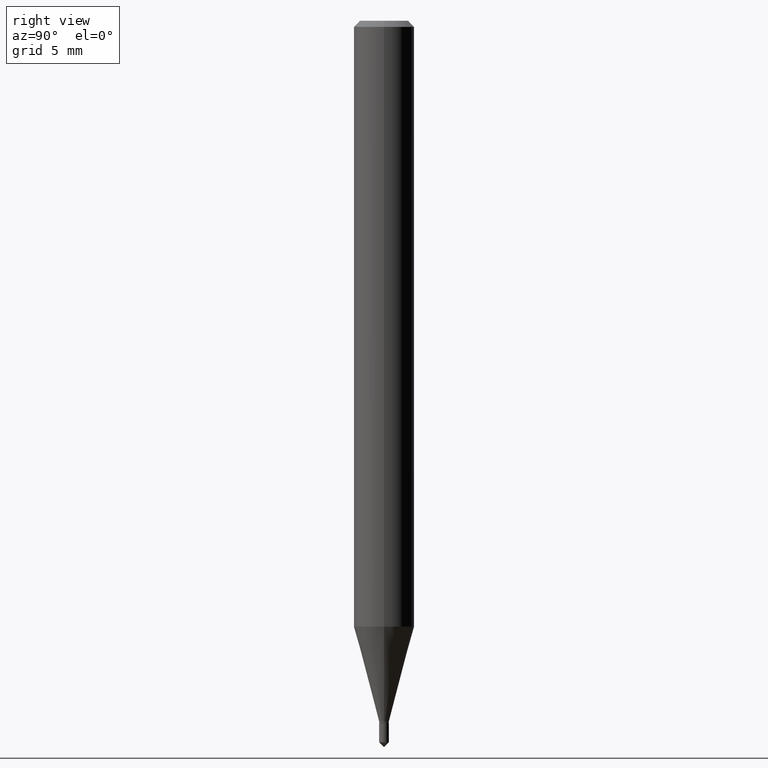
[diagram: clean part render]
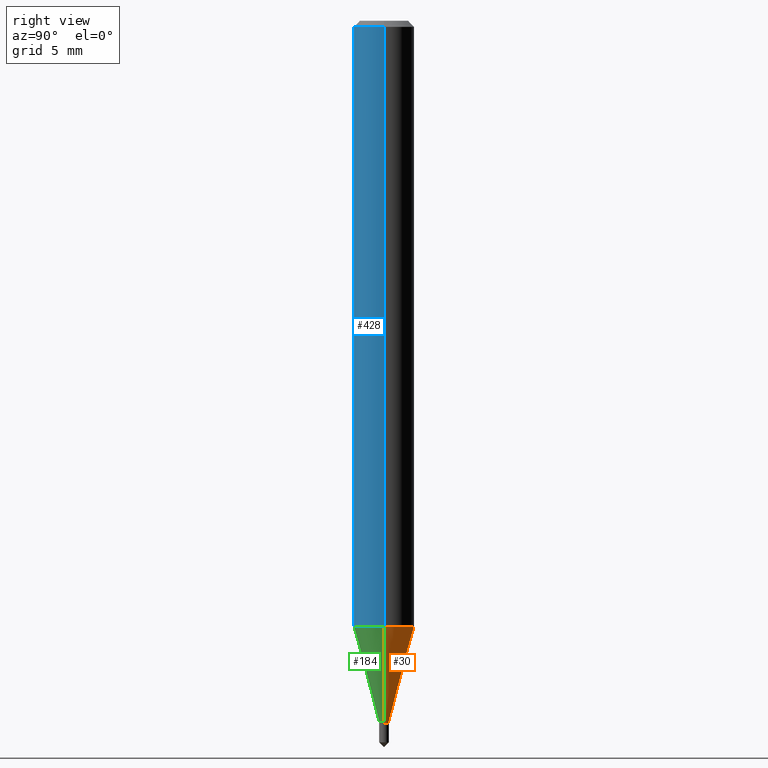
[diagram: same view with three faces highlighted in distinct colors, each labeled with its STEP entity id]
A machine part, right view with three faces highlighted in distinct colors.
Their STEP definitions:

[orange] entity #30 — the highlighted conical surface has half-angle 15 deg.
#4 = AXIS2_PLACEMENT_3D ( 'NONE', #236, #418, #45 ) ;
#26 = CARTESIAN_POINT ( 'NONE',  ( 3.538593362549893723E-29, -5.052173497306033276E-15, -1.447000000000000508 ) ) ;
#29 = DIRECTION ( 'NONE',  ( -2.445468806185136597E-29, 3.491481338843145583E-15, 1.000000000000000000 ) ) ;
#30 = ADVANCED_FACE ( 'NONE', ( #299 ), #131, .T. ) ;
#45 = DIRECTION ( 'NONE',  ( 1.000000000000000000, -6.982962677686235945E-15, 0.000000000000000000 ) ) ;
#50 = CARTESIAN_POINT ( 'NONE',  ( 0.01000000000000000021, -5.122003124082895786E-15, -1.447000000000000508 ) ) ;
#70 = CARTESIAN_POINT ( 'NONE',  ( 3.059446136316986925E-29, -4.368078245418367740E-15, -1.251067332602634252 ) ) ;
#83 = LINE ( 'NONE', #230, #281 ) ;
#93 = CIRCLE ( 'NONE', #425, 0.01000000000000000021 ) ;
#104 = EDGE_LOOP ( 'NONE', ( #201, #403, #405, #222 ) ) ;
#112 = VERTEX_POINT ( 'NONE', #345 ) ;
#131 = CONICAL_SURFACE ( 'NONE', #4, 0.01000000000000000021, 0.2617993877991499074 ) ;
#141 = VERTEX_POINT ( 'NONE', #420 ) ;
#143 = EDGE_CURVE ( 'NONE', #240, #141, #83, .T. ) ;
#182 = VERTEX_POINT ( 'NONE', #396 ) ;
#201 = ORIENTED_EDGE ( 'NONE', *, *, #395, .T. ) ;
#222 = ORIENTED_EDGE ( 'NONE', *, *, #284, .F. ) ;
#230 = CARTESIAN_POINT ( 'NONE',  ( -0.01000000000000000021, -4.981119223730023195E-15, -1.447000000000000508 ) ) ;
#236 = CARTESIAN_POINT ( 'NONE',  ( 3.538593362549893723E-29, -5.052173497306033276E-15, -1.447000000000000508 ) ) ;
#240 = VERTEX_POINT ( 'NONE', #323 ) ;
#281 = VECTOR ( 'NONE', #469, 39.37007874015748854 ) ;
#284 = EDGE_CURVE ( 'NONE', #112, #182, #387, .T. ) ;
#292 = DIRECTION ( 'NONE',  ( 1.000000000000000000, -6.982962677686235945E-15, 0.000000000000000000 ) ) ;
#299 = FACE_OUTER_BOUND ( 'NONE', #104, .T. ) ;
#323 = CARTESIAN_POINT ( 'NONE',  ( -0.01000000000000000021, -4.985483575403576559E-15, -1.447000000000000508 ) ) ;
#337 = AXIS2_PLACEMENT_3D ( 'NONE', #70, #29, #404 ) ;
#345 = CARTESIAN_POINT ( 'NONE',  ( 0.01000000000000000021, -5.122003124082895786E-15, -1.447000000000000508 ) ) ;
#353 = DIRECTION ( 'NONE',  ( 0.2588190451025211836, 1.565188264969622559E-15, 0.9659258262890679791 ) ) ;
#357 = EDGE_CURVE ( 'NONE', #182, #141, #377, .T. ) ;
#362 = VECTOR ( 'NONE', #353, 39.37007874015748854 ) ;
#377 = CIRCLE ( 'NONE', #337, 0.06250000000000015266 ) ;
#387 = LINE ( 'NONE', #50, #362 ) ;
#395 = EDGE_CURVE ( 'NONE', #112, #240, #93, .T. ) ;
#396 = CARTESIAN_POINT ( 'NONE',  ( 0.06250000000000015266, -4.804513412773760987E-15, -1.251067332602634252 ) ) ;
#403 = ORIENTED_EDGE ( 'NONE', *, *, #143, .T. ) ;
#404 = DIRECTION ( 'NONE',  ( 1.000000000000000000, -6.982962677686269077E-15, 0.000000000000000000 ) ) ;
#405 = ORIENTED_EDGE ( 'NONE', *, *, #357, .F. ) ;
#418 = DIRECTION ( 'NONE',  ( -2.445468806185136597E-29, 3.491481338843145583E-15, 1.000000000000000000 ) ) ;
#420 = CARTESIAN_POINT ( 'NONE',  ( -0.06250000000000015266, -3.923989035568304335E-15, -1.251067332602634252 ) ) ;
#425 = AXIS2_PLACEMENT_3D ( 'NONE', #26, #484, #292 ) ;
#469 = DIRECTION ( 'NONE',  ( -0.2588190451025211836, 5.211531920934547886E-15, 0.9659258262890679791 ) ) ;
#484 = DIRECTION ( 'NONE',  ( -2.445468806185136597E-29, 3.491481338843145583E-15, 1.000000000000000000 ) ) ;

[blue] entity #428 — the highlighted cylindrical surface (edge-blend (fillet) strip) has radius 1.5875 mm, axis along (-0, 0, 1).
#3 = CYLINDRICAL_SURFACE ( 'NONE', #13, 0.06250000000000006939 ) ;
#12 = CARTESIAN_POINT ( 'NONE',  ( 0.06250000000000000000, -4.800786840909313294E-16, -0.01250000000000008570 ) ) ;
#13 = AXIS2_PLACEMENT_3D ( 'NONE', #103, #137, #211 ) ;
#16 = EDGE_LOOP ( 'NONE', ( #256, #72, #76, #56 ) ) ;
#20 = EDGE_CURVE ( 'NONE', #182, #185, #81, .T. ) ;
#35 = CIRCLE ( 'NONE', #160, 0.06250000000000015266 ) ;
#56 = ORIENTED_EDGE ( 'NONE', *, *, #213, .F. ) ;
#63 = FACE_OUTER_BOUND ( 'NONE', #16, .T. ) ;
#65 = EDGE_CURVE ( 'NONE', #141, #289, #383, .T. ) ;
#72 = ORIENTED_EDGE ( 'NONE', *, *, #99, .T. ) ;
#76 = ORIENTED_EDGE ( 'NONE', *, *, #20, .T. ) ;
#81 = LINE ( 'NONE', #264, #406 ) ;
#99 = EDGE_CURVE ( 'NONE', #141, #182, #35, .T. ) ;
#103 = CARTESIAN_POINT ( 'NONE',  ( 0.000000000000000000, 0.000000000000000000, 0.000000000000000000 ) ) ;
#121 = DIRECTION ( 'NONE',  ( -2.445468806185136597E-29, 3.491481338843145583E-15, 1.000000000000000000 ) ) ;
#137 = DIRECTION ( 'NONE',  ( -2.445468806185136597E-29, 3.491481338843145583E-15, 1.000000000000000000 ) ) ;
#141 = VERTEX_POINT ( 'NONE', #420 ) ;
#148 = DIRECTION ( 'NONE',  ( -2.445468806185136877E-29, 3.491481338843145188E-15, 1.000000000000000000 ) ) ;
#153 = CARTESIAN_POINT ( 'NONE',  ( -0.06250000000000006939, 4.440892098500631092E-16, -3.074334431409319617E-30 ) ) ;
#160 = AXIS2_PLACEMENT_3D ( 'NONE', #385, #121, #309 ) ;
#182 = VERTEX_POINT ( 'NONE', #396 ) ;
#185 = VERTEX_POINT ( 'NONE', #12 ) ;
#194 = DIRECTION ( 'NONE',  ( -2.445468806185136877E-29, 3.491481338843145188E-15, 1.000000000000000000 ) ) ;
#205 = VECTOR ( 'NONE', #194, 39.37007874015748143 ) ;
#206 = CARTESIAN_POINT ( 'NONE',  ( 3.056836007731441853E-31, -4.364351673553962300E-17, -0.01250000000000008570 ) ) ;
#207 = CIRCLE ( 'NONE', #415, 0.06250000000000000000 ) ;
#211 = DIRECTION ( 'NONE',  ( 1.000000000000000000, -6.982962677686267499E-15, 4.876176775795936353E-29 ) ) ;
#213 = EDGE_CURVE ( 'NONE', #289, #185, #207, .T. ) ;
#242 = DIRECTION ( 'NONE',  ( 1.000000000000000000, -6.982962677686266711E-15, 0.000000000000000000 ) ) ;
#245 = DIRECTION ( 'NONE',  ( -2.445468806185136597E-29, 3.491481338843145583E-15, 1.000000000000000000 ) ) ;
#256 = ORIENTED_EDGE ( 'NONE', *, *, #65, .F. ) ;
#264 = CARTESIAN_POINT ( 'NONE',  ( 0.06250000000000006939, -4.364351673553922118E-16, 3.047610484872463724E-30 ) ) ;
#289 = VERTEX_POINT ( 'NONE', #471 ) ;
#309 = DIRECTION ( 'NONE',  ( 1.000000000000000000, -6.982962677686269077E-15, 0.000000000000000000 ) ) ;
#383 = LINE ( 'NONE', #153, #205 ) ;
#385 = CARTESIAN_POINT ( 'NONE',  ( 3.059446136316986925E-29, -4.368078245418367740E-15, -1.251067332602634252 ) ) ;
#396 = CARTESIAN_POINT ( 'NONE',  ( 0.06250000000000015266, -4.804513412773760987E-15, -1.251067332602634252 ) ) ;
#406 = VECTOR ( 'NONE', #148, 39.37007874015748143 ) ;
#415 = AXIS2_PLACEMENT_3D ( 'NONE', #206, #245, #242 ) ;
#420 = CARTESIAN_POINT ( 'NONE',  ( -0.06250000000000015266, -3.923989035568304335E-15, -1.251067332602634252 ) ) ;
#428 = ADVANCED_FACE ( 'NONE', ( #63 ), #3, .T. ) ;
#471 = CARTESIAN_POINT ( 'NONE',  ( -0.06250000000000000000, -1.761771671226889654E-15, -0.01250000000000008570 ) ) ;

[green] entity #184 — the highlighted conical surface has half-angle 15 deg.
#8 = DIRECTION ( 'NONE',  ( 1.000000000000000000, -6.982962677686235945E-15, 0.000000000000000000 ) ) ;
#15 = FACE_OUTER_BOUND ( 'NONE', #348, .T. ) ;
#22 = CIRCLE ( 'NONE', #49, 0.01000000000000000021 ) ;
#35 = CIRCLE ( 'NONE', #160, 0.06250000000000015266 ) ;
#39 = DIRECTION ( 'NONE',  ( -2.445468806185136597E-29, 3.491481338843145583E-15, 1.000000000000000000 ) ) ;
#49 = AXIS2_PLACEMENT_3D ( 'NONE', #191, #39, #8 ) ;
#50 = CARTESIAN_POINT ( 'NONE',  ( 0.01000000000000000021, -5.122003124082895786E-15, -1.447000000000000508 ) ) ;
#83 = LINE ( 'NONE', #230, #281 ) ;
#99 = EDGE_CURVE ( 'NONE', #141, #182, #35, .T. ) ;
#100 = EDGE_CURVE ( 'NONE', #240, #112, #22, .T. ) ;
#110 = CONICAL_SURFACE ( 'NONE', #233, 0.01000000000000000021, 0.2617993877991499074 ) ;
#112 = VERTEX_POINT ( 'NONE', #345 ) ;
#121 = DIRECTION ( 'NONE',  ( -2.445468806185136597E-29, 3.491481338843145583E-15, 1.000000000000000000 ) ) ;
#141 = VERTEX_POINT ( 'NONE', #420 ) ;
#143 = EDGE_CURVE ( 'NONE', #240, #141, #83, .T. ) ;
#160 = AXIS2_PLACEMENT_3D ( 'NONE', #385, #121, #309 ) ;
#165 = DIRECTION ( 'NONE',  ( -2.445468806185136597E-29, 3.491481338843145583E-15, 1.000000000000000000 ) ) ;
#182 = VERTEX_POINT ( 'NONE', #396 ) ;
#184 = ADVANCED_FACE ( 'NONE', ( #15 ), #110, .T. ) ;
#191 = CARTESIAN_POINT ( 'NONE',  ( 3.538593362549893723E-29, -5.052173497306033276E-15, -1.447000000000000508 ) ) ;
#225 = ORIENTED_EDGE ( 'NONE', *, *, #99, .F. ) ;
#230 = CARTESIAN_POINT ( 'NONE',  ( -0.01000000000000000021, -4.981119223730023195E-15, -1.447000000000000508 ) ) ;
#233 = AXIS2_PLACEMENT_3D ( 'NONE', #472, #165, #283 ) ;
#240 = VERTEX_POINT ( 'NONE', #323 ) ;
#281 = VECTOR ( 'NONE', #469, 39.37007874015748854 ) ;
#283 = DIRECTION ( 'NONE',  ( 1.000000000000000000, -6.982962677686235945E-15, 0.000000000000000000 ) ) ;
#284 = EDGE_CURVE ( 'NONE', #112, #182, #387, .T. ) ;
#309 = DIRECTION ( 'NONE',  ( 1.000000000000000000, -6.982962677686269077E-15, 0.000000000000000000 ) ) ;
#323 = CARTESIAN_POINT ( 'NONE',  ( -0.01000000000000000021, -4.985483575403576559E-15, -1.447000000000000508 ) ) ;
#345 = CARTESIAN_POINT ( 'NONE',  ( 0.01000000000000000021, -5.122003124082895786E-15, -1.447000000000000508 ) ) ;
#348 = EDGE_LOOP ( 'NONE', ( #409, #437, #485, #225 ) ) ;
#353 = DIRECTION ( 'NONE',  ( 0.2588190451025211836, 1.565188264969622559E-15, 0.9659258262890679791 ) ) ;
#362 = VECTOR ( 'NONE', #353, 39.37007874015748854 ) ;
#385 = CARTESIAN_POINT ( 'NONE',  ( 3.059446136316986925E-29, -4.368078245418367740E-15, -1.251067332602634252 ) ) ;
#387 = LINE ( 'NONE', #50, #362 ) ;
#396 = CARTESIAN_POINT ( 'NONE',  ( 0.06250000000000015266, -4.804513412773760987E-15, -1.251067332602634252 ) ) ;
#409 = ORIENTED_EDGE ( 'NONE', *, *, #143, .F. ) ;
#420 = CARTESIAN_POINT ( 'NONE',  ( -0.06250000000000015266, -3.923989035568304335E-15, -1.251067332602634252 ) ) ;
#437 = ORIENTED_EDGE ( 'NONE', *, *, #100, .T. ) ;
#469 = DIRECTION ( 'NONE',  ( -0.2588190451025211836, 5.211531920934547886E-15, 0.9659258262890679791 ) ) ;
#472 = CARTESIAN_POINT ( 'NONE',  ( 3.538593362549893723E-29, -5.052173497306033276E-15, -1.447000000000000508 ) ) ;
#485 = ORIENTED_EDGE ( 'NONE', *, *, #284, .T. ) ;